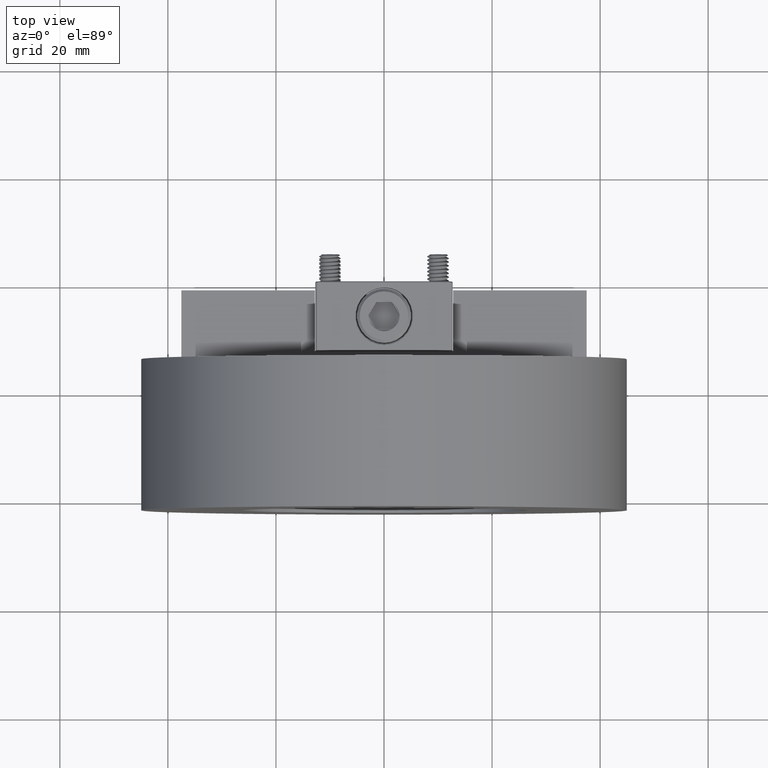
[diagram: clean part render]
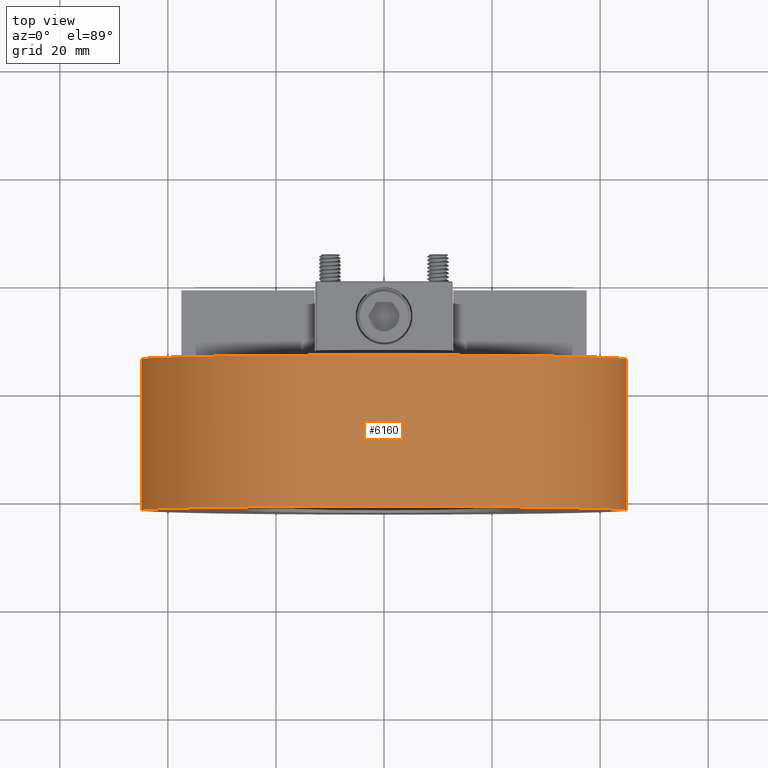
[diagram: same view with one face highlighted and labeled with its STEP entity id]
A machine part, top view. The second image highlights one B-rep face of the part: STEP entity #6160.
In plain terms, the highlighted cylindrical surface (bore or boss wall) has radius 44.9683 mm, axis along (0, 1, -0).
Its self-contained STEP definition (entity closure, byte-faithful):
#1072=FACE_OUTER_BOUND('',#1519,.T.);
#1519=EDGE_LOOP('',(#5599,#5600,#5601,#5602));
#1852=LINE('',#22161,#2185);
#2185=VECTOR('',#8429,1.77040354330709);
#2438=CIRCLE('',#6748,1.77040354330709);
#2468=CIRCLE('',#6809,1.77040354330709);
#2986=VERTEX_POINT('',#22051);
#3016=VERTEX_POINT('',#22156);
#3833=EDGE_CURVE('',#2986,#2986,#2438,.T.);
#3877=EDGE_CURVE('',#3016,#3016,#2468,.T.);
#3879=EDGE_CURVE('',#3016,#2986,#1852,.T.);
#5599=ORIENTED_EDGE('',*,*,#3877,.T.);
#5600=ORIENTED_EDGE('',*,*,#3879,.T.);
#5601=ORIENTED_EDGE('',*,*,#3833,.T.);
#5602=ORIENTED_EDGE('',*,*,#3879,.F.);
#5800=CYLINDRICAL_SURFACE('',#6811,1.77040354330709);
#6160=ADVANCED_FACE('',(#1072),#5800,.T.);
#6748=AXIS2_PLACEMENT_3D('',#22052,#8287,#8288);
#6809=AXIS2_PLACEMENT_3D('',#22157,#8423,#8424);
#6811=AXIS2_PLACEMENT_3D('',#22160,#8427,#8428);
#8287=DIRECTION('center_axis',(-4.47447557100191E-31,1.,-4.93780845207522E-16));
#8288=DIRECTION('ref_axis',(1.,4.47447557100191E-31,7.79048809062404E-47));
#8423=DIRECTION('center_axis',(0.,-1.,4.45947323698808E-16));
#8424=DIRECTION('ref_axis',(1.,0.,0.));
#8427=DIRECTION('center_axis',(0.,1.,-4.93780845207522E-16));
#8428=DIRECTION('ref_axis',(0.,4.93780845207522E-16,1.));
#8429=DIRECTION('',(0.,-1.,4.93780845207522E-16));
#22051=CARTESIAN_POINT('',(-2.16811903251016E-16,-0.0787401574803068,-1.77040354330709));
#22052=CARTESIAN_POINT('Origin',(2.44773580232318E-15,-0.0787401574803059,
3.51329162758966E-16));
#22156=CARTESIAN_POINT('',(-2.16811903251016E-16,1.02362204724409,-1.77040354330709));
#22157=CARTESIAN_POINT('Origin',(0.,1.02362204724409,-6.34122913501016E-16));
#22160=CARTESIAN_POINT('Origin',(0.,0.621943819418925,-3.05451325254331E-16));
#22161=CARTESIAN_POINT('',(-2.16811903251016E-16,0.621943819418924,-1.77040354330709));